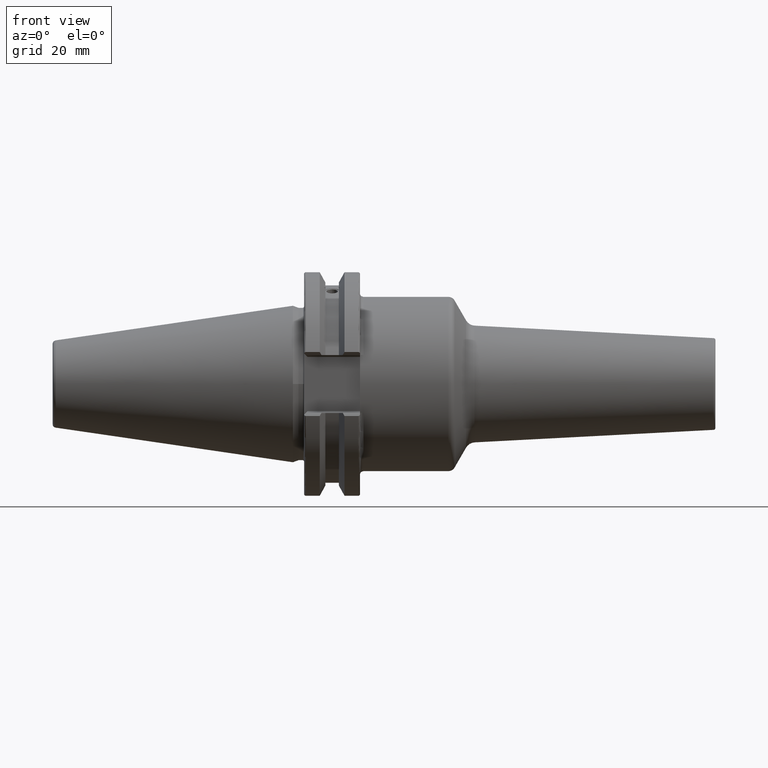
[diagram: clean part render]
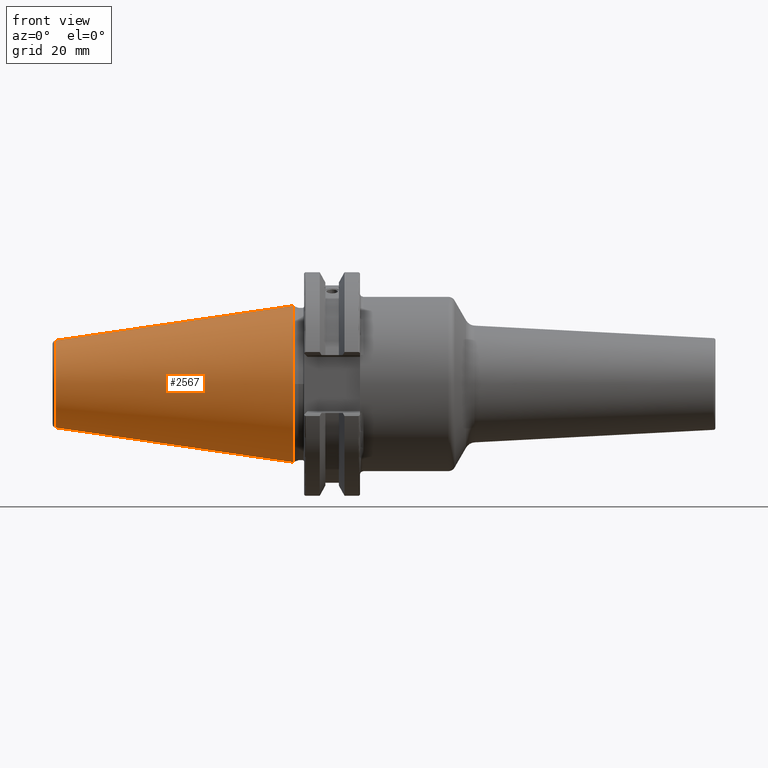
[diagram: same view with one face highlighted and labeled with its STEP entity id]
A machine part, front view. The second image highlights one B-rep face of the part: STEP entity #2567.
In plain terms, the highlighted conical surface has half-angle 8.297 deg.
Its self-contained STEP definition (entity closure, byte-faithful):
#47=CARTESIAN_POINT('',(-6.739430689359E1,0.E0,0.E0));
#48=DIRECTION('',(-1.E0,0.E0,0.E0));
#49=DIRECTION('',(0.E0,0.E0,-1.E0));
#50=AXIS2_PLACEMENT_3D('',#47,#48,#49);
#52=DIRECTION('',(-9.895329809873E-1,-1.311204003070E-12,-1.443068935927E-1));
#53=VECTOR('',#52,6.810718610546E1);
#54=CARTESIAN_POINT('',(0.E0,0.E0,2.2225E1));
#55=LINE('',#54,#53);
#56=CARTESIAN_POINT('',(2.557953848736E-13,0.E0,0.E0));
#57=DIRECTION('',(1.E0,0.E0,0.E0));
#58=DIRECTION('',(0.E0,0.E0,1.E0));
#59=AXIS2_PLACEMENT_3D('',#56,#57,#58);
#61=CARTESIAN_POINT('',(-2.842170943040E-14,0.E0,0.E0));
#62=DIRECTION('',(1.E0,0.E0,0.E0));
#63=DIRECTION('',(0.E0,-1.E0,0.E0));
#64=AXIS2_PLACEMENT_3D('',#61,#62,#63);
#66=DIRECTION('',(-9.895329809873E-1,1.311191833568E-12,1.443068935927E-1));
#67=VECTOR('',#66,6.810718610546E1);
#68=CARTESIAN_POINT('',(0.E0,0.E0,-2.2225E1));
#69=LINE('',#68,#67);
#2146=CARTESIAN_POINT('',(-6.739430689359E1,0.E0,-1.239666354178E1));
#2147=CARTESIAN_POINT('',(-6.739430689359E1,0.E0,1.239666354178E1));
#2148=VERTEX_POINT('',#2146);
#2149=VERTEX_POINT('',#2147);
#2162=CARTESIAN_POINT('',(0.E0,-2.2225E1,-1.633929467105E-8));
#2163=VERTEX_POINT('',#2162);
#2166=CARTESIAN_POINT('',(2.557953848736E-13,0.E0,2.2225E1));
#2167=VERTEX_POINT('',#2166);
#2168=CARTESIAN_POINT('',(-2.842170943040E-14,0.E0,-2.2225E1));
#2169=VERTEX_POINT('',#2168);
#2553=CARTESIAN_POINT('',(-3.369715344680E1,0.E0,0.E0));
#2554=DIRECTION('',(1.E0,0.E0,0.E0));
#2555=DIRECTION('',(0.E0,0.E0,1.E0));
#2556=AXIS2_PLACEMENT_3D('',#2553,#2554,#2555);
#2557=CONICAL_SURFACE('',#2556,1.731083177089E1,8.297145E0);
#2558=ORIENTED_EDGE('',*,*,#2547,.T.);
#2559=ORIENTED_EDGE('',*,*,#2503,.F.);
#2561=ORIENTED_EDGE('',*,*,#2560,.T.);
#2563=ORIENTED_EDGE('',*,*,#2562,.T.);
#2564=ORIENTED_EDGE('',*,*,#2497,.T.);
#2565=EDGE_LOOP('',(#2558,#2559,#2561,#2563,#2564));
#2566=FACE_OUTER_BOUND('',#2565,.F.);
#2567=ADVANCED_FACE('',(#2566),#2557,.T.);
#51=CIRCLE('',#50,1.239666354178E1);
#60=CIRCLE('',#59,2.2225E1);
#65=CIRCLE('',#64,2.2225E1);
#2497=EDGE_CURVE('',#2169,#2148,#69,.T.);
#2503=EDGE_CURVE('',#2167,#2149,#55,.T.);
#2547=EDGE_CURVE('',#2148,#2149,#51,.T.);
#2560=EDGE_CURVE('',#2167,#2163,#60,.T.);
#2562=EDGE_CURVE('',#2163,#2169,#65,.T.);